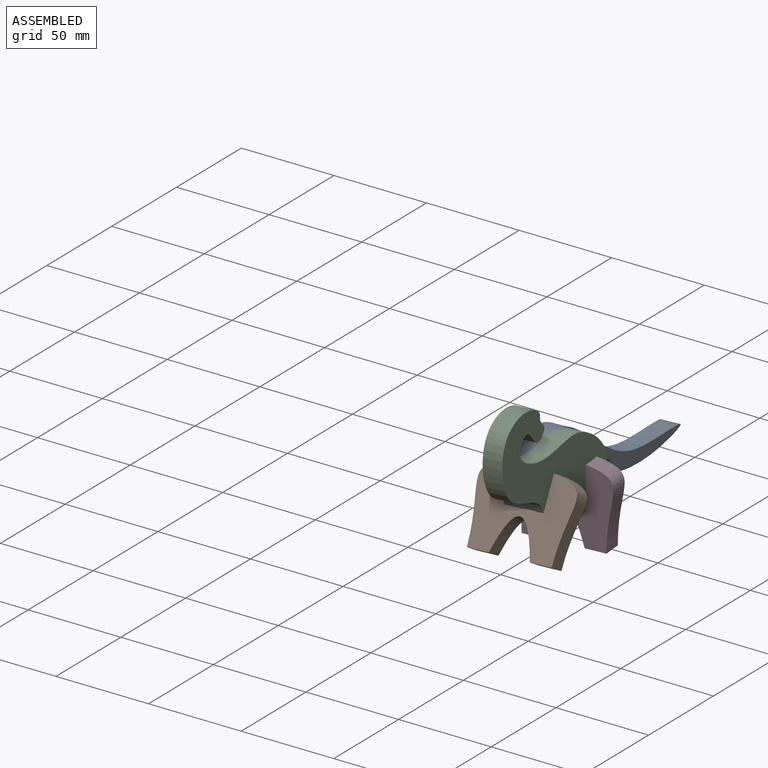
[diagram: assembled view]
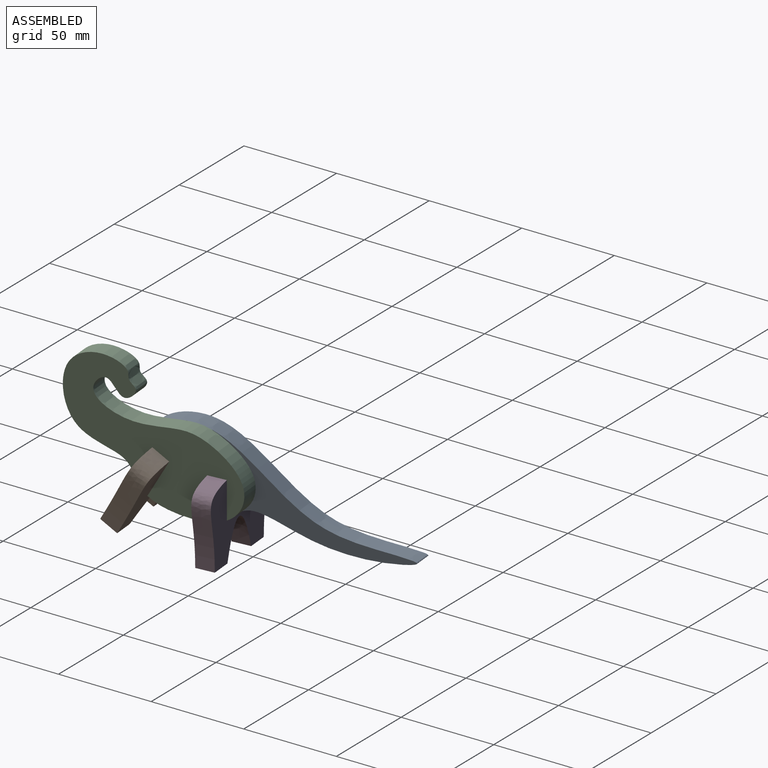
[diagram: assembled view, second angle]
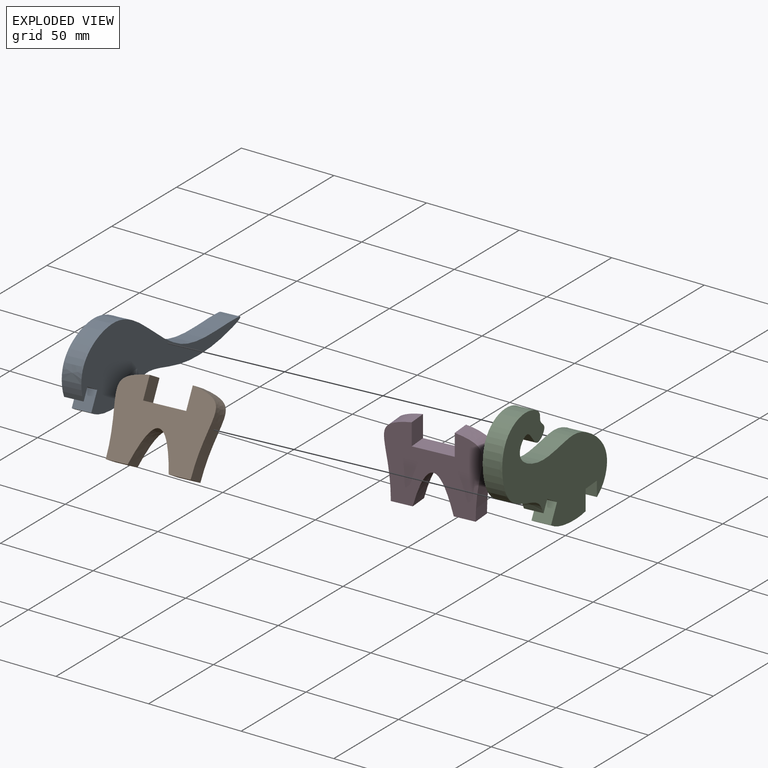
[diagram: exploded view]
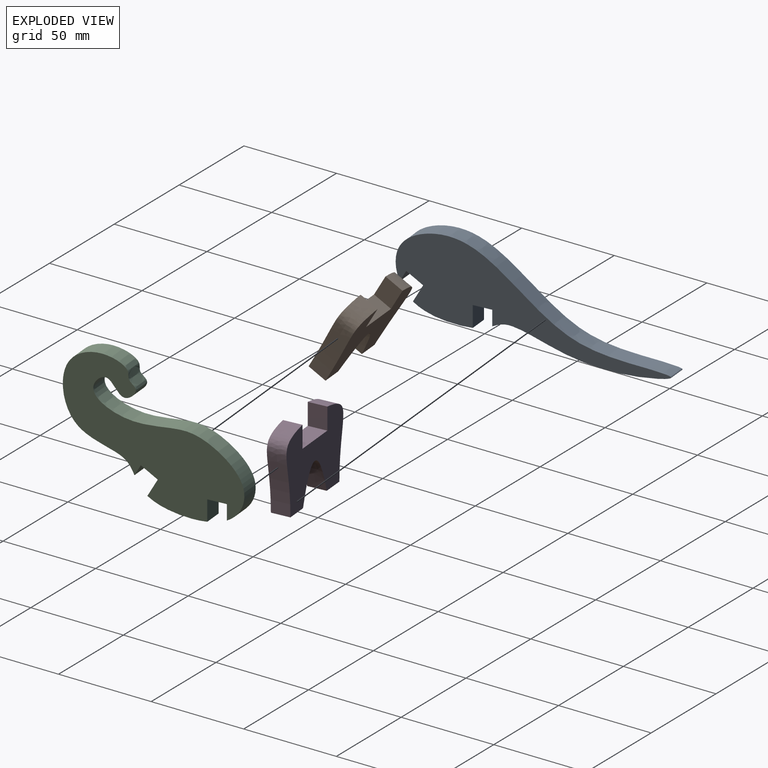
[diagram: exploded view, second angle]
ASSEMBLY  parts=4 mates=3
PART A: 10 faces, bbox 143.2x10x44 mm
  f0: extruded ~30.7x10mm, area 316.9mm2, adj f2,f3,f4,f8
  f1: extruded ~141.37x36.35mm, area 2597.1mm2, adj f2,f3,f5,f7
  f2: plane 143.22x44.03mm, normal (0,-1,0), area 2562mm2, adj f0,f1,f4,f5,f6,f7,f8,f9
  f3: plane 143.22x44.03mm, normal (0,1,0), area 2562mm2, adj f0,f1,f4,f5,f6,f7,f8,f9
  f4: plane 10.36x10mm, normal (0.98,0,0.17), area 105.2mm2, adj f0,f2,f3,f6
  f5: plane 10x6.62mm, normal (-0.98,0,-0.17), area 67.2mm2, adj f1,f2,f3,f6
  f6: plane 10x9.85mm, normal (0.17,0,-0.98), area 100mm2, adj f2,f3,f4,f5
  f7: plane 10x7.59mm, normal (0.94,0,-0.34), area 80.8mm2, adj f1,f2,f3,f9
  f8: plane 10.51x10mm, normal (-0.94,0,0.34), area 111.9mm2, adj f0,f2,f3,f9
  f9: plane 10x9.4mm, normal (-0.34,0,-0.94), area 100mm2, adj f2,f3,f7,f8
PART B: 10 faces, bbox 53.8x10x42.6 mm
  f0: extruded ~40.9x14.16mm, area 505.5mm2, adj f3,f5,f6,f9
  f1: plane 11.17x10mm, normal (0,0,-1), area 111.7mm2, adj f2,f4,f5,f6
  f2: extruded ~20.98x18.86mm, area 449.7mm2, adj f1,f3,f5,f6
  f3: plane 11.17x10mm, normal (0,0,-1), area 111.7mm2, adj f0,f2,f5,f6
  f4: extruded ~40.9x14.16mm, area 505.5mm2, adj f1,f5,f6,f8
  f5: plane 53.8x42.64mm, normal (0,-1,0), area 1347.3mm2, adj f0,f1,f2,f3,f4,f7,f8,f9
  f6: plane 53.8x42.64mm, normal (0,1,0), area 1347.3mm2, adj f0,f1,f2,f3,f4,f7,f8,f9
  f7: plane 22x10mm, normal (0,0,1), area 220mm2, adj f5,f6,f8,f9
  f8: plane 11.73x10mm, normal (1,0,0), area 117.3mm2, adj f4,f5,f6,f7
  f9: plane 11.73x10mm, normal (-1,0,0), area 117.3mm2, adj f0,f5,f6,f7
PART C: 10 faces, bbox 102.6x10x55.2 mm
  f0: extruded ~30.63x10mm, area 316.3mm2, adj f2,f3,f5,f8
  f1: extruded ~100.21x47.67mm, area 2535mm2, adj f2,f3,f6,f7
  f2: plane 102.62x55.2mm, normal (0,-1,0), area 2968.3mm2, adj f0,f1,f4,f5,f6,f7,f8,f9
  f3: plane 102.62x55.2mm, normal (0,1,0), area 2968.3mm2, adj f0,f1,f4,f5,f6,f7,f8,f9
  f4: plane 10x9.85mm, normal (0.17,0,-0.98), area 100mm2, adj f2,f3,f5,f6
  f5: plane 10.43x10mm, normal (0.98,0,0.17), area 105.9mm2, adj f0,f2,f3,f4
  f6: plane 10x6.38mm, normal (-0.98,0,-0.17), area 64.8mm2, adj f1,f2,f3,f4
  f7: plane 10x7.56mm, normal (0.94,0,-0.34), area 80.5mm2, adj f1,f2,f3,f9
  f8: plane 10.29x10mm, normal (-0.94,0,0.34), area 109.5mm2, adj f0,f2,f3,f9
  f9: plane 10x9.4mm, normal (-0.34,0,-0.94), area 100mm2, adj f2,f3,f7,f8
PART D: same geometry as B
PLACE A rot(axis=(-0.17,-0.19,-0.97),86.9deg) t=(-90.55,-17.41,-18.43)mm
PLACE B rot(axis=(-0.99,-0.04,0.16),30.4deg) t=(-52.85,-10.72,24.08)mm
PLACE C rot(axis=(-0.17,-0.19,-0.97),86.9deg) t=(-80.59,-16.54,-18.43)mm
PLACE D rot(axis=(0,0,1),5deg) t=(-53.87,1,26.66)mm
MATE fastened D.f9 <-> C.f3  axis (-1,-0.09,0) through (-81.04,-11.41,-20.41)mm
MATE fastened B.f9 <-> C.f3  axis (-1,-0.09,0) through (-78.08,-45.24,-11.69)mm
MATE fastened C.f2 <-> A.f3  axis (-1,-0.09,0) through (-88.04,-46.11,-11.69)mm
